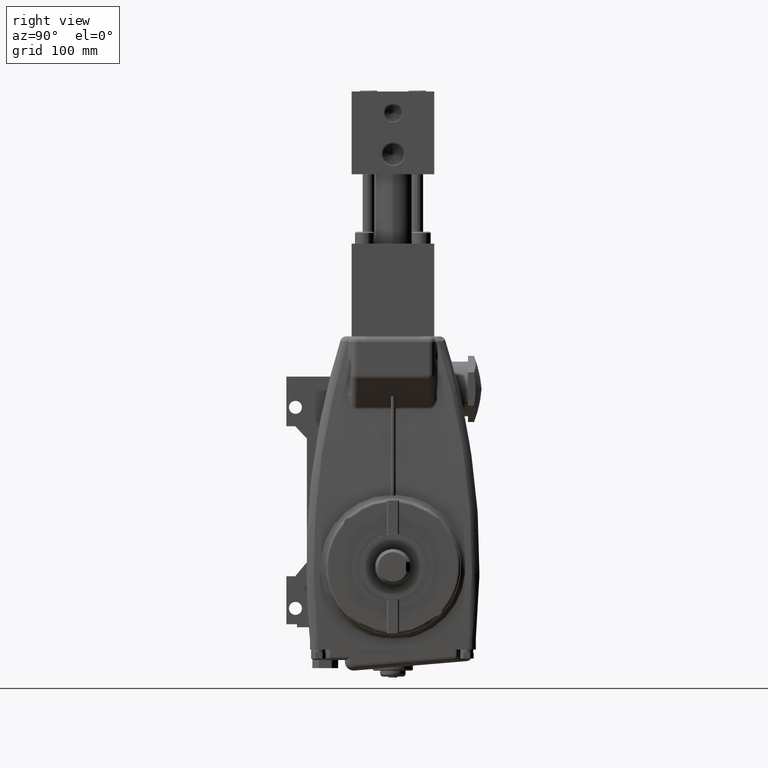
[diagram: clean part render]
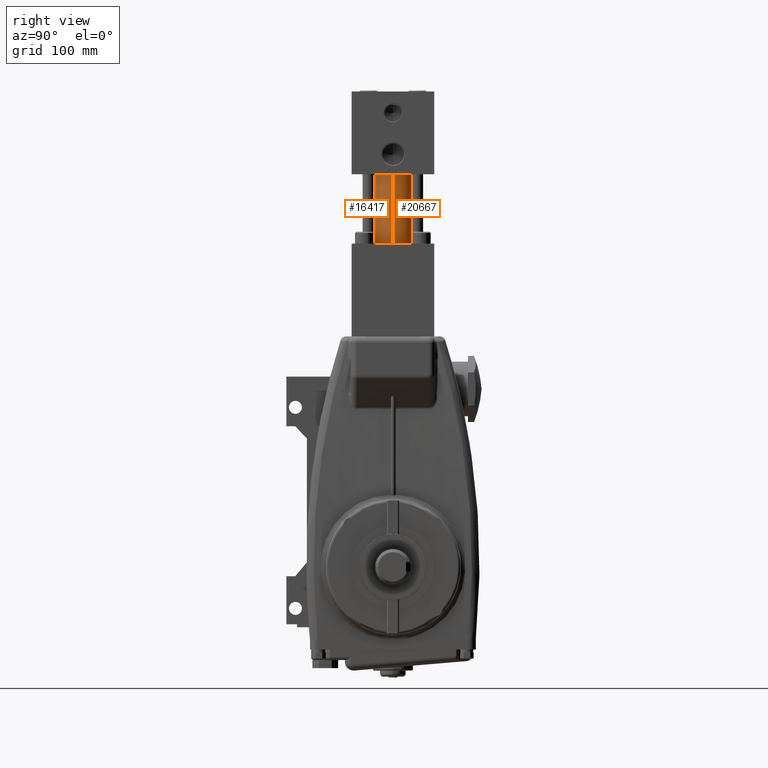
[diagram: same view with one multi-face feature highlighted, each face labeled with its STEP entity id]
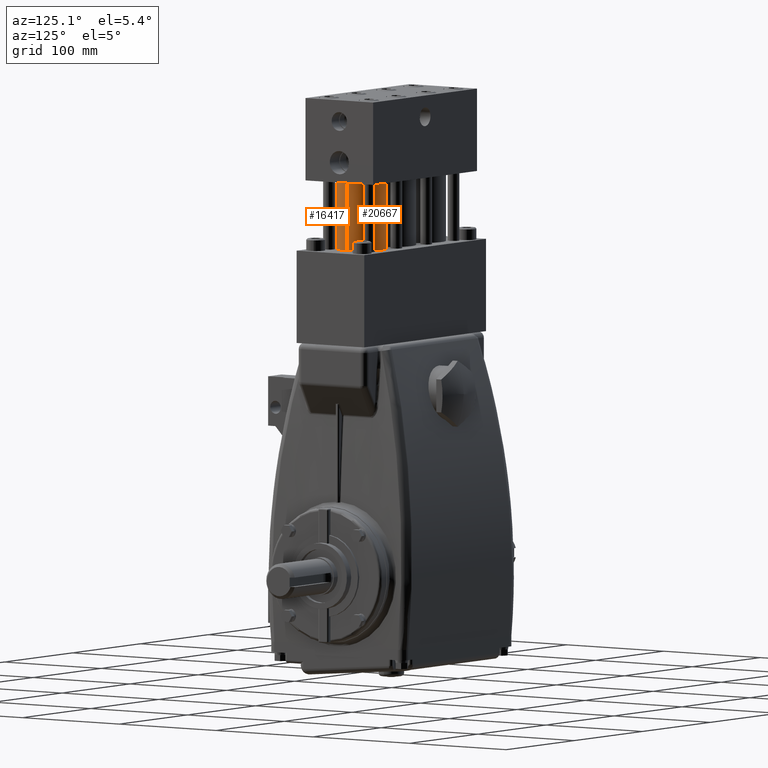
[diagram: same view with one multi-face feature highlighted, each face labeled with its STEP entity id]
A machine part, right view. The highlighted faces form ONE feature: a constant-radius fillet chain: 2 tangent blend faces with common blend radius 20.955 mm. The faces share edges in the B-rep.
A second angle (auxiliary view) of the same feature is appended — it is thin or edge-on in the first view.
Their STEP definitions:
[1] entity #16417 (Cylinder):
#16170 = LINE ( 'NONE', #16334, #16201 ) ;
#16172 = CARTESIAN_POINT ( 'NONE',  ( 0.9072834645669287700, 0.0000000000000000000, 5.393999999999999200 ) ) ;
#16201 = VECTOR ( 'NONE', #16240, 39.37007874015748100 ) ;
#16240 = DIRECTION ( 'NONE',  ( -0.0000000000000000000, -0.0000000000000000000, -1.000000000000000000 ) ) ;
#16285 = CARTESIAN_POINT ( 'NONE',  ( 2.557283464566929800, 1.010300241903461100E-016, 5.393999999999999200 ) ) ;
#16334 = CARTESIAN_POINT ( 'NONE',  ( 2.557283464566929800, 1.010300241903461500E-016, 5.393999999999999200 ) ) ;
#16403 = ORIENTED_EDGE ( 'NONE', *, *, #16530, .T. ) ;
#16417 = ADVANCED_FACE ( 'NONE', ( #34844 ), #34947, .T. ) ;
#16418 = ORIENTED_EDGE ( 'NONE', *, *, #20646, .F. ) ;
#16419 = ORIENTED_EDGE ( 'NONE', *, *, #16420, .F. ) ;
#16420 = EDGE_CURVE ( 'NONE', #20645, #20648, #34945, .T. ) ;
#16421 = ORIENTED_EDGE ( 'NONE', *, *, #16502, .T. ) ;
#16500 = VERTEX_POINT ( 'NONE', #35047 ) ;
#16502 = EDGE_CURVE ( 'NONE', #20645, #16500, #34998, .T. ) ;
#16530 = EDGE_CURVE ( 'NONE', #16500, #20665, #35103, .T. ) ;
#16665 = EDGE_LOOP ( 'NONE', ( #16418, #16419, #16421, #16403 ) ) ;
#20645 = VERTEX_POINT ( 'NONE', #16172 ) ;
#20646 = EDGE_CURVE ( 'NONE', #20648, #20665, #16170, .T. ) ;
#20648 = VERTEX_POINT ( 'NONE', #16285 ) ;
#20665 = VERTEX_POINT ( 'NONE', #32566 ) ;
#32566 = CARTESIAN_POINT ( 'NONE',  ( 2.557283464566929800, 1.010300241903461100E-016, 3.085999999999998500 ) ) ;
#34844 = FACE_OUTER_BOUND ( 'NONE', #16665, .T. ) ;
#34870 = DIRECTION ( 'NONE',  ( 1.000000000000000000, 0.0000000000000000000, 0.0000000000000000000 ) ) ;
#34871 = DIRECTION ( 'NONE',  ( 0.0000000000000000000, 0.0000000000000000000, 1.000000000000000000 ) ) ;
#34940 = CARTESIAN_POINT ( 'NONE',  ( 1.732283464566929200, 0.0000000000000000000, 5.393999999999999200 ) ) ;
#34941 = AXIS2_PLACEMENT_3D ( 'NONE', #34940, #34871, #34870 ) ;
#34942 = DIRECTION ( 'NONE',  ( -1.000000000000000000, 0.0000000000000000000, 0.0000000000000000000 ) ) ;
#34943 = DIRECTION ( 'NONE',  ( -0.0000000000000000000, -0.0000000000000000000, -1.000000000000000000 ) ) ;
#34944 = AXIS2_PLACEMENT_3D ( 'NONE', #34946, #34943, #34942 ) ;
#34945 = CIRCLE ( 'NONE', #34941, 0.8250000000000006200 ) ;
#34946 = CARTESIAN_POINT ( 'NONE',  ( 1.732283464566929200, 0.0000000000000000000, 5.393999999999999200 ) ) ;
#34947 = CYLINDRICAL_SURFACE ( 'NONE', #34944, 0.8250000000000004000 ) ;
#34995 = DIRECTION ( 'NONE',  ( -0.0000000000000000000, -0.0000000000000000000, -1.000000000000000000 ) ) ;
#34996 = VECTOR ( 'NONE', #34995, 39.37007874015748100 ) ;
#34997 = CARTESIAN_POINT ( 'NONE',  ( 0.9072834645669287700, 0.0000000000000000000, 5.393999999999999200 ) ) ;
#34998 = LINE ( 'NONE', #34997, #34996 ) ;
#35047 = CARTESIAN_POINT ( 'NONE',  ( 0.9072834645669287700, 0.0000000000000000000, 3.085999999999998500 ) ) ;
#35099 = DIRECTION ( 'NONE',  ( -1.000000000000000000, 0.0000000000000000000, 0.0000000000000000000 ) ) ;
#35100 = DIRECTION ( 'NONE',  ( 1.549984677256319500E-016, -0.0000000000000000000, 1.000000000000000000 ) ) ;
#35101 = CARTESIAN_POINT ( 'NONE',  ( 1.732283464566929200, 0.0000000000000000000, 3.085999999999998500 ) ) ;
#35102 = AXIS2_PLACEMENT_3D ( 'NONE', #35101, #35100, #35099 ) ;
#35103 = CIRCLE ( 'NONE', #35102, 0.8250000000000004000 ) ;
[2] entity #20667 (Cylinder):
#16170 = LINE ( 'NONE', #16334, #16201 ) ;
#16172 = CARTESIAN_POINT ( 'NONE',  ( 0.9072834645669287700, 0.0000000000000000000, 5.393999999999999200 ) ) ;
#16201 = VECTOR ( 'NONE', #16240, 39.37007874015748100 ) ;
#16240 = DIRECTION ( 'NONE',  ( -0.0000000000000000000, -0.0000000000000000000, -1.000000000000000000 ) ) ;
#16254 = AXIS2_PLACEMENT_3D ( 'NONE', #16359, #16358, #16357 ) ;
#16255 = CIRCLE ( 'NONE', #16254, 0.8250000000000006200 ) ;
#16285 = CARTESIAN_POINT ( 'NONE',  ( 2.557283464566929800, 1.010300241903461100E-016, 5.393999999999999200 ) ) ;
#16334 = CARTESIAN_POINT ( 'NONE',  ( 2.557283464566929800, 1.010300241903461500E-016, 5.393999999999999200 ) ) ;
#16357 = DIRECTION ( 'NONE',  ( 1.000000000000000000, 0.0000000000000000000, 0.0000000000000000000 ) ) ;
#16358 = DIRECTION ( 'NONE',  ( 0.0000000000000000000, 0.0000000000000000000, 1.000000000000000000 ) ) ;
#16359 = CARTESIAN_POINT ( 'NONE',  ( 1.732283464566929200, 0.0000000000000000000, 5.393999999999999200 ) ) ;
#16498 = ORIENTED_EDGE ( 'NONE', *, *, #16499, .T. ) ;
#16499 = EDGE_CURVE ( 'NONE', #20665, #16500, #35052, .T. ) ;
#16500 = VERTEX_POINT ( 'NONE', #35047 ) ;
#16501 = ORIENTED_EDGE ( 'NONE', *, *, #16502, .F. ) ;
#16502 = EDGE_CURVE ( 'NONE', #20645, #16500, #34998, .T. ) ;
#20629 = EDGE_LOOP ( 'NONE', ( #20630, #20664, #16498, #16501 ) ) ;
#20630 = ORIENTED_EDGE ( 'NONE', *, *, #20647, .F. ) ;
#20645 = VERTEX_POINT ( 'NONE', #16172 ) ;
#20646 = EDGE_CURVE ( 'NONE', #20648, #20665, #16170, .T. ) ;
#20647 = EDGE_CURVE ( 'NONE', #20648, #20645, #16255, .T. ) ;
#20648 = VERTEX_POINT ( 'NONE', #16285 ) ;
#20664 = ORIENTED_EDGE ( 'NONE', *, *, #20646, .T. ) ;
#20665 = VERTEX_POINT ( 'NONE', #32566 ) ;
#20667 = ADVANCED_FACE ( 'NONE', ( #32565 ), #38129, .T. ) ;
#32565 = FACE_OUTER_BOUND ( 'NONE', #20629, .T. ) ;
#32566 = CARTESIAN_POINT ( 'NONE',  ( 2.557283464566929800, 1.010300241903461100E-016, 3.085999999999998500 ) ) ;
#34995 = DIRECTION ( 'NONE',  ( -0.0000000000000000000, -0.0000000000000000000, -1.000000000000000000 ) ) ;
#34996 = VECTOR ( 'NONE', #34995, 39.37007874015748100 ) ;
#34997 = CARTESIAN_POINT ( 'NONE',  ( 0.9072834645669287700, 0.0000000000000000000, 5.393999999999999200 ) ) ;
#34998 = LINE ( 'NONE', #34997, #34996 ) ;
#35047 = CARTESIAN_POINT ( 'NONE',  ( 0.9072834645669287700, 0.0000000000000000000, 3.085999999999998500 ) ) ;
#35048 = DIRECTION ( 'NONE',  ( -1.000000000000000000, 0.0000000000000000000, 0.0000000000000000000 ) ) ;
#35049 = DIRECTION ( 'NONE',  ( 1.549984677256319500E-016, -0.0000000000000000000, 1.000000000000000000 ) ) ;
#35050 = CARTESIAN_POINT ( 'NONE',  ( 1.732283464566929200, 0.0000000000000000000, 3.085999999999998500 ) ) ;
#35051 = AXIS2_PLACEMENT_3D ( 'NONE', #35050, #35049, #35048 ) ;
#35052 = CIRCLE ( 'NONE', #35051, 0.8250000000000004000 ) ;
#38125 = DIRECTION ( 'NONE',  ( -1.000000000000000000, 0.0000000000000000000, 0.0000000000000000000 ) ) ;
#38126 = DIRECTION ( 'NONE',  ( -0.0000000000000000000, -0.0000000000000000000, -1.000000000000000000 ) ) ;
#38127 = CARTESIAN_POINT ( 'NONE',  ( 1.732283464566929200, 0.0000000000000000000, 5.393999999999999200 ) ) ;
#38128 = AXIS2_PLACEMENT_3D ( 'NONE', #38127, #38126, #38125 ) ;
#38129 = CYLINDRICAL_SURFACE ( 'NONE', #38128, 0.8250000000000004000 ) ;